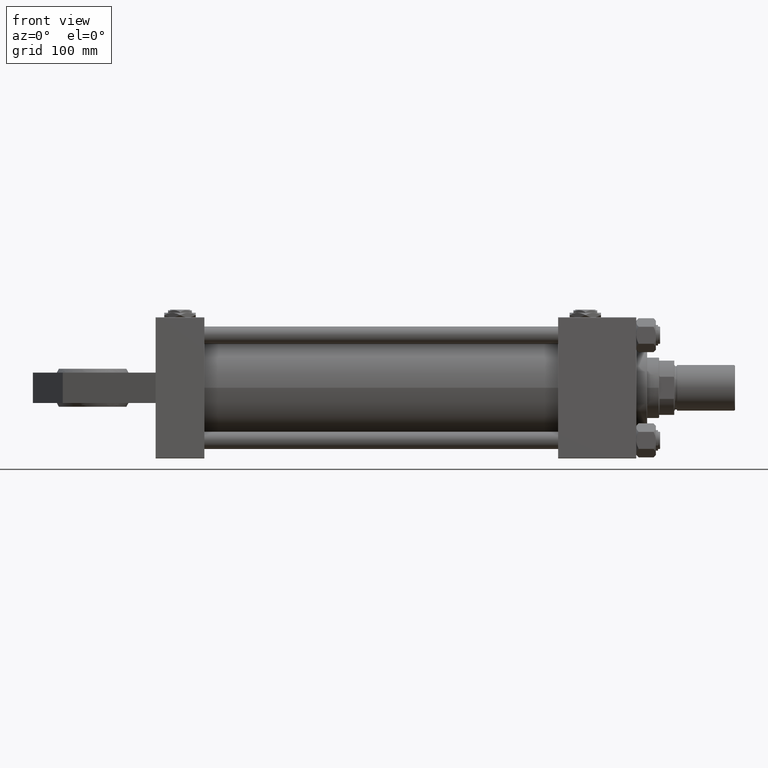
[diagram: clean part render]
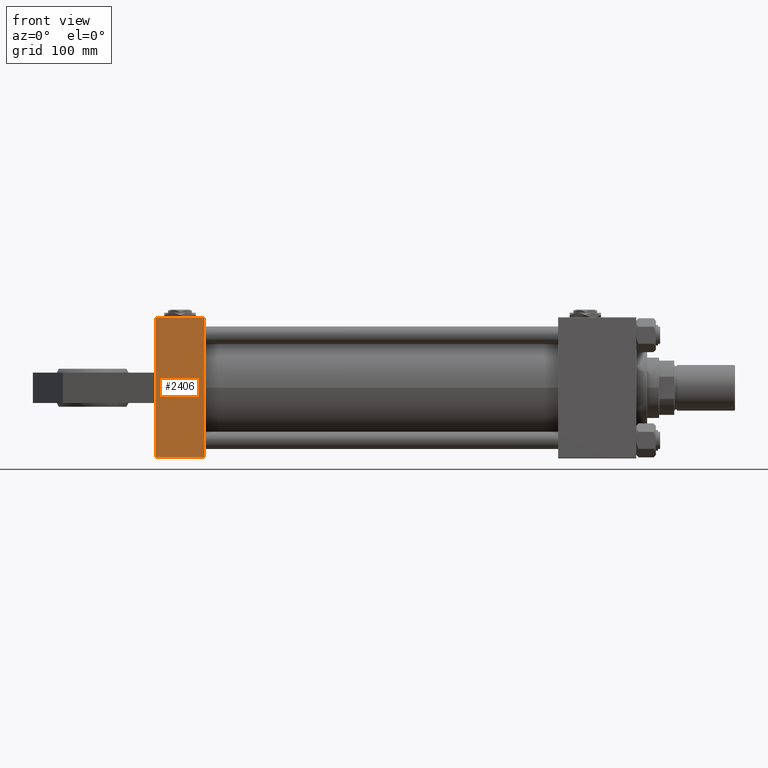
[diagram: same view with one face highlighted and labeled with its STEP entity id]
A machine part, front view. The second image highlights one B-rep face of the part: STEP entity #2406.
In plain terms, the highlighted planar face has unit normal (0, 1, 0).
Its self-contained STEP definition (entity closure, byte-faithful):
#1605 = DIRECTION ( 'NONE',  ( 1.000000000000000000, 0.000000000000000000, 0.000000000000000000 ) ) ;
#1779 = AXIS2_PLACEMENT_3D ( 'NONE', #13295, #46095, #46359 ) ;
#2406 = ADVANCED_FACE ( 'NONE', ( #43126 ), #17333, .F. ) ;
#3650 = CARTESIAN_POINT ( 'NONE',  ( 0.000000000000000000, -14.00000000000000000, 65.00000000000000000 ) ) ;
#4295 = EDGE_CURVE ( 'NONE', #50565, #31572, #14916, .T. ) ;
#5378 = CARTESIAN_POINT ( 'NONE',  ( 45.00000000000000000, -64.49999999999997158, 65.00000000000000000 ) ) ;
#5560 = ORIENTED_EDGE ( 'NONE', *, *, #26270, .F. ) ;
#6803 = DIRECTION ( 'NONE',  ( -1.000000000000000000, 0.000000000000000000, 0.000000000000000000 ) ) ;
#7668 = LINE ( 'NONE', #3650, #8136 ) ;
#8136 = VECTOR ( 'NONE', #20582, 1000.000000000000000 ) ;
#8617 = VERTEX_POINT ( 'NONE', #38597 ) ;
#10707 = VERTEX_POINT ( 'NONE', #28479 ) ;
#11609 = CARTESIAN_POINT ( 'NONE',  ( 0.000000000000000000, -64.49999999999997158, 65.00000000000000000 ) ) ;
#13168 = VECTOR ( 'NONE', #20053, 1000.000000000000000 ) ;
#13295 = CARTESIAN_POINT ( 'NONE',  ( 45.00000000000000000, 65.00000000000000000, 65.00000000000001421 ) ) ;
#14916 = LINE ( 'NONE', #23001, #41897 ) ;
#16181 = LINE ( 'NONE', #40906, #22779 ) ;
#16232 = ORIENTED_EDGE ( 'NONE', *, *, #35366, .T. ) ;
#17333 = PLANE ( 'NONE',  #1779 ) ;
#20053 = DIRECTION ( 'NONE',  ( 0.000000000000000000, -1.000000000000000000, -1.067522139062650425E-16 ) ) ;
#20089 = CARTESIAN_POINT ( 'NONE',  ( 0.000000000000000000, 64.49999999999997158, 65.00000000000001421 ) ) ;
#20582 = DIRECTION ( 'NONE',  ( 0.000000000000000000, 1.000000000000000000, 0.000000000000000000 ) ) ;
#21538 = ORIENTED_EDGE ( 'NONE', *, *, #4295, .T. ) ;
#22779 = VECTOR ( 'NONE', #28561, 1000.000000000000000 ) ;
#23001 = CARTESIAN_POINT ( 'NONE',  ( 0.000000000000000000, 65.00000000000000000, 65.00000000000001421 ) ) ;
#23220 = LINE ( 'NONE', #27248, #38159 ) ;
#23709 = EDGE_CURVE ( 'NONE', #50012, #10707, #24097, .T. ) ;
#24097 = LINE ( 'NONE', #40479, #13168 ) ;
#26270 = EDGE_CURVE ( 'NONE', #8617, #26577, #16181, .T. ) ;
#26577 = VERTEX_POINT ( 'NONE', #31993 ) ;
#26804 = EDGE_CURVE ( 'NONE', #50565, #10707, #7668, .T. ) ;
#27248 = CARTESIAN_POINT ( 'NONE',  ( 0.000000000000000000, 64.49999999999997158, 65.00000000000001421 ) ) ;
#28479 = CARTESIAN_POINT ( 'NONE',  ( 0.000000000000000000, 14.00000000000000000, 65.00000000000000000 ) ) ;
#28561 = DIRECTION ( 'NONE',  ( 0.000000000000000000, -1.000000000000000000, -1.067522139062650425E-16 ) ) ;
#30018 = EDGE_CURVE ( 'NONE', #31572, #26577, #42204, .T. ) ;
#31572 = VERTEX_POINT ( 'NONE', #11609 ) ;
#31993 = CARTESIAN_POINT ( 'NONE',  ( 45.00000000000000000, -64.49999999999997158, 65.00000000000000000 ) ) ;
#34116 = EDGE_LOOP ( 'NONE', ( #40230, #46295, #21538, #40035, #5560, #16232 ) ) ;
#35366 = EDGE_CURVE ( 'NONE', #8617, #50012, #23220, .T. ) ;
#38159 = VECTOR ( 'NONE', #6803, 1000.000000000000000 ) ;
#38597 = CARTESIAN_POINT ( 'NONE',  ( 45.00000000000000000, 64.49999999999997158, 65.00000000000001421 ) ) ;
#39386 = DIRECTION ( 'NONE',  ( 0.000000000000000000, -1.000000000000000000, -1.067522139062650425E-16 ) ) ;
#40035 = ORIENTED_EDGE ( 'NONE', *, *, #30018, .T. ) ;
#40230 = ORIENTED_EDGE ( 'NONE', *, *, #23709, .T. ) ;
#40479 = CARTESIAN_POINT ( 'NONE',  ( 0.000000000000000000, 65.00000000000000000, 65.00000000000001421 ) ) ;
#40906 = CARTESIAN_POINT ( 'NONE',  ( 45.00000000000000000, 65.00000000000000000, 65.00000000000001421 ) ) ;
#41897 = VECTOR ( 'NONE', #39386, 1000.000000000000000 ) ;
#42204 = LINE ( 'NONE', #5378, #47008 ) ;
#43126 = FACE_OUTER_BOUND ( 'NONE', #34116, .T. ) ;
#43881 = CARTESIAN_POINT ( 'NONE',  ( 0.000000000000000000, -14.00000000000000000, 65.00000000000000000 ) ) ;
#46095 = DIRECTION ( 'NONE',  ( 0.000000000000000000, 1.067522139062650548E-16, -1.000000000000000000 ) ) ;
#46295 = ORIENTED_EDGE ( 'NONE', *, *, #26804, .F. ) ;
#46359 = DIRECTION ( 'NONE',  ( 0.000000000000000000, 1.000000000000000000, 1.067522139062650548E-16 ) ) ;
#47008 = VECTOR ( 'NONE', #1605, 1000.000000000000000 ) ;
#50012 = VERTEX_POINT ( 'NONE', #20089 ) ;
#50565 = VERTEX_POINT ( 'NONE', #43881 ) ;